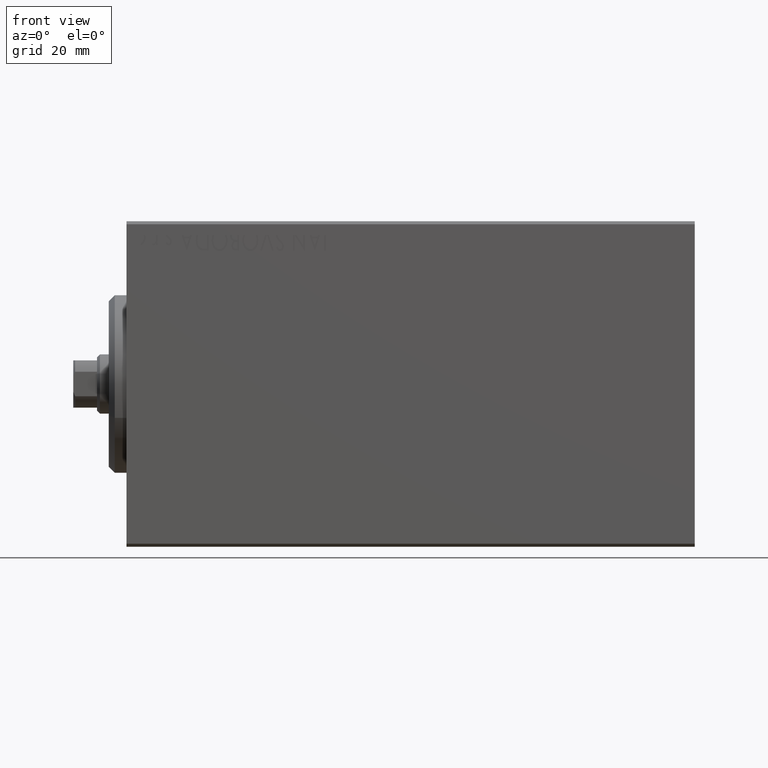
[diagram: clean part render]
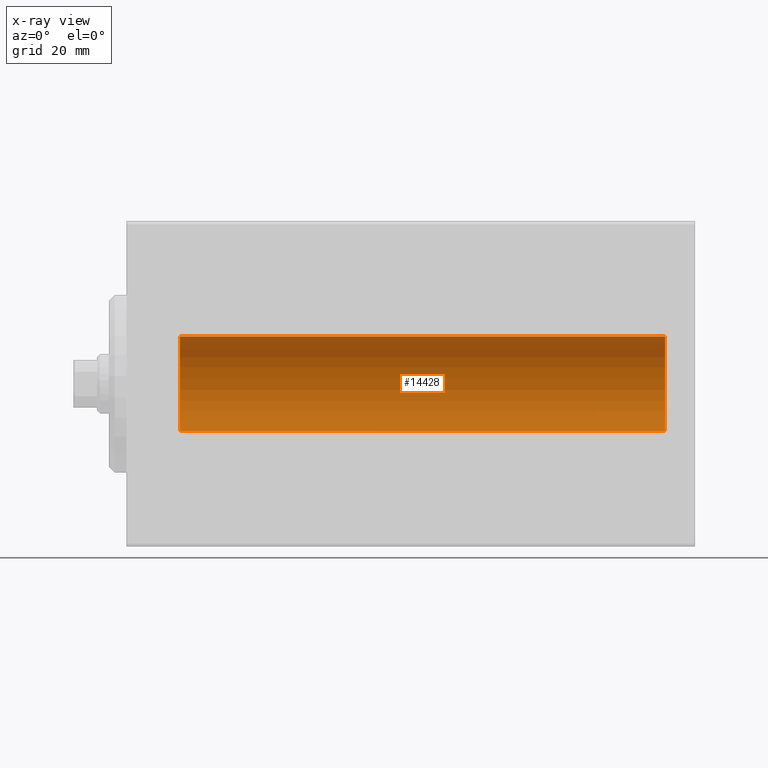
[diagram: x-ray — body ghosted, one internal face saturated and labeled with its STEP entity id]
A machine part, front view, then the same camera in x-ray: the body is ghosted and one INTERNAL B-rep face — a face not visible from any outside direction — is saturated and labeled: STEP entity #14428.
In plain terms, the highlighted cylindrical surface (partial cylindrical patch) has radius 8 mm, axis along (-1, -0, -0).
Its self-contained STEP definition (entity closure, byte-faithful):
#127 = VERTEX_POINT ( 'NONE', #34252 ) ;
#2098 = AXIS2_PLACEMENT_3D ( 'NONE', #23677, #19891, #23221 ) ;
#2760 = CARTESIAN_POINT ( 'NONE',  ( 91.00000000000000000, 0.000000000000000000, 7.999999999999998224 ) ) ;
#3561 = DIRECTION ( 'NONE',  ( -1.000000000000000000, 0.000000000000000000, 0.000000000000000000 ) ) ;
#3789 = DIRECTION ( 'NONE',  ( 0.000000000000000000, 0.000000000000000000, 1.000000000000000000 ) ) ;
#5266 = DIRECTION ( 'NONE',  ( -1.000000000000000000, -0.000000000000000000, -0.000000000000000000 ) ) ;
#6450 = VECTOR ( 'NONE', #36280, 1000.000000000000000 ) ;
#9214 = EDGE_CURVE ( 'NONE', #35492, #127, #18293, .T. ) ;
#9449 = CYLINDRICAL_SURFACE ( 'NONE', #2098, 7.999999999999998224 ) ;
#10493 = EDGE_LOOP ( 'NONE', ( #16225, #14630, #21287, #40227 ) ) ;
#11119 = CARTESIAN_POINT ( 'NONE',  ( 9.000000000000007105, 0.000000000000000000, 0.000000000000000000 ) ) ;
#12552 = FACE_OUTER_BOUND ( 'NONE', #10493, .T. ) ;
#14428 = ADVANCED_FACE ( 'NONE', ( #12552 ), #9449, .F. ) ;
#14630 = ORIENTED_EDGE ( 'NONE', *, *, #9214, .F. ) ;
#14999 = VERTEX_POINT ( 'NONE', #39905 ) ;
#15518 = EDGE_CURVE ( 'NONE', #33965, #14999, #30399, .T. ) ;
#16225 = ORIENTED_EDGE ( 'NONE', *, *, #25932, .F. ) ;
#18293 = CIRCLE ( 'NONE', #43040, 7.999999999999998224 ) ;
#19891 = DIRECTION ( 'NONE',  ( -1.000000000000000000, -0.000000000000000000, -0.000000000000000000 ) ) ;
#21207 = AXIS2_PLACEMENT_3D ( 'NONE', #11119, #3561, #3789 ) ;
#21287 = ORIENTED_EDGE ( 'NONE', *, *, #35418, .T. ) ;
#22757 = CARTESIAN_POINT ( 'NONE',  ( 91.00000000000000000, 0.000000000000000000, 7.999999999999998224 ) ) ;
#23221 = DIRECTION ( 'NONE',  ( 0.000000000000000000, 0.000000000000000000, 1.000000000000000000 ) ) ;
#23677 = CARTESIAN_POINT ( 'NONE',  ( 91.00000000000000000, 0.000000000000000000, 0.000000000000000000 ) ) ;
#25490 = LINE ( 'NONE', #35690, #39142 ) ;
#25932 = EDGE_CURVE ( 'NONE', #127, #14999, #25490, .T. ) ;
#30399 = CIRCLE ( 'NONE', #21207, 7.999999999999998224 ) ;
#31430 = CARTESIAN_POINT ( 'NONE',  ( 91.00000000000000000, 0.000000000000000000, 0.000000000000000000 ) ) ;
#33965 = VERTEX_POINT ( 'NONE', #35951 ) ;
#34252 = CARTESIAN_POINT ( 'NONE',  ( 91.00000000000000000, 9.797174393178823685E-16, -7.999999999999998224 ) ) ;
#35418 = EDGE_CURVE ( 'NONE', #35492, #33965, #39192, .T. ) ;
#35492 = VERTEX_POINT ( 'NONE', #2760 ) ;
#35690 = CARTESIAN_POINT ( 'NONE',  ( 91.00000000000000000, 9.797174393178823685E-16, -7.999999999999998224 ) ) ;
#35951 = CARTESIAN_POINT ( 'NONE',  ( 9.000000000000007105, 0.000000000000000000, 7.999999999999998224 ) ) ;
#36280 = DIRECTION ( 'NONE',  ( -1.000000000000000000, -0.000000000000000000, -0.000000000000000000 ) ) ;
#38935 = DIRECTION ( 'NONE',  ( -1.000000000000000000, 0.000000000000000000, 0.000000000000000000 ) ) ;
#39142 = VECTOR ( 'NONE', #5266, 1000.000000000000000 ) ;
#39192 = LINE ( 'NONE', #22757, #6450 ) ;
#39905 = CARTESIAN_POINT ( 'NONE',  ( 9.000000000000007105, 9.797174393178823685E-16, -7.999999999999998224 ) ) ;
#40227 = ORIENTED_EDGE ( 'NONE', *, *, #15518, .T. ) ;
#42470 = DIRECTION ( 'NONE',  ( 0.000000000000000000, 0.000000000000000000, 1.000000000000000000 ) ) ;
#43040 = AXIS2_PLACEMENT_3D ( 'NONE', #31430, #38935, #42470 ) ;